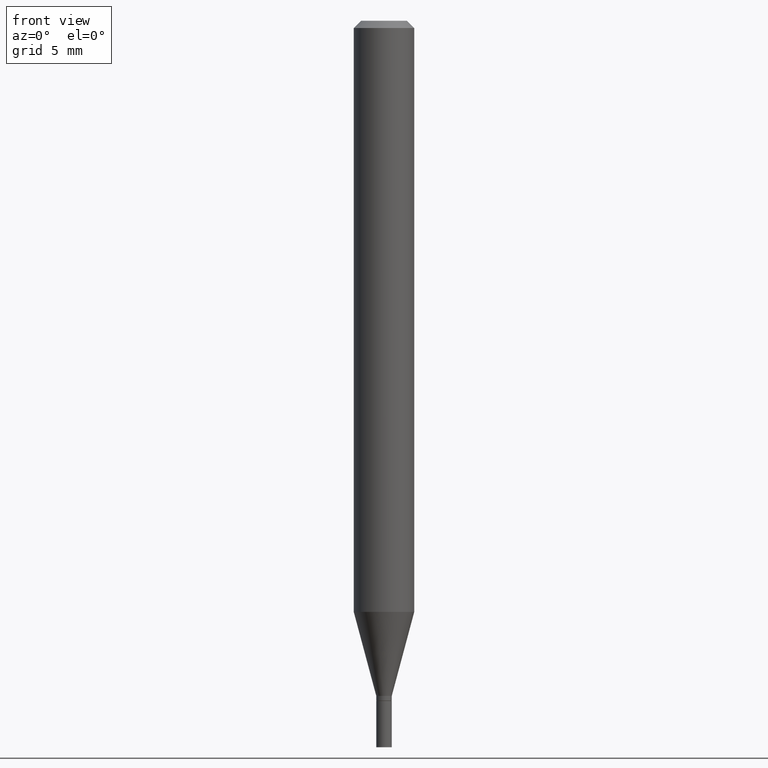
[diagram: clean part render]
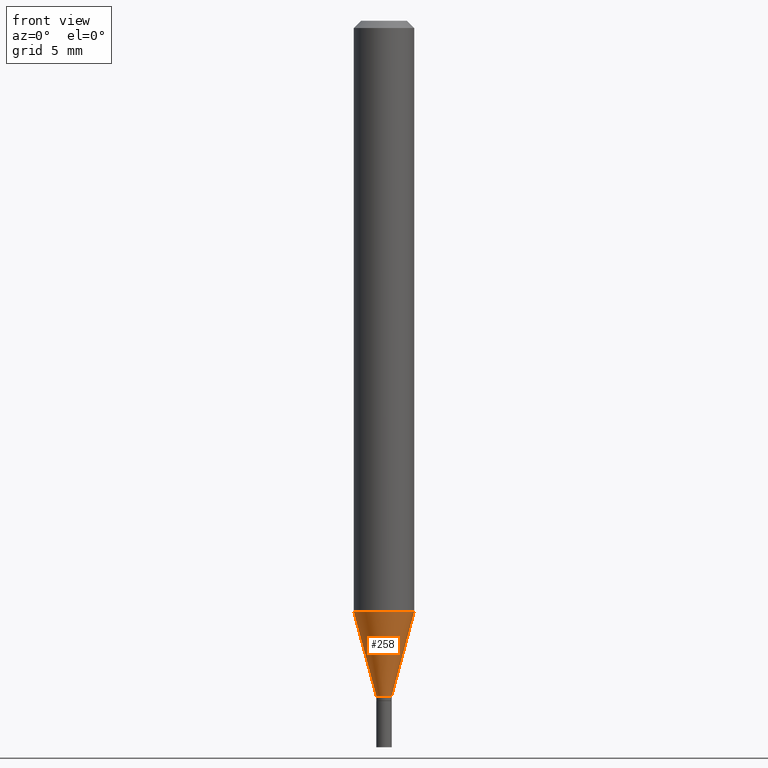
[diagram: same view with one face highlighted and labeled with its STEP entity id]
A machine part, front view. The second image highlights one B-rep face of the part: STEP entity #258.
In plain terms, the highlighted conical surface has half-angle 15 deg.
Its self-contained STEP definition (entity closure, byte-faithful):
#1 = DIRECTION ( 'NONE',  ( 1.000000000000000000, -6.982962677686244622E-15, 0.000000000000000000 ) ) ;
#5 = DIRECTION ( 'NONE',  ( 0.2588190451025213501, 1.565188264969621968E-15, 0.9659258262890682012 ) ) ;
#7 = ORIENTED_EDGE ( 'NONE', *, *, #84, .T. ) ;
#8 = CARTESIAN_POINT ( 'NONE',  ( 2.984595972587221379E-29, -4.261212048961128661E-15, -1.220459637448047641 ) ) ;
#10 = CONICAL_SURFACE ( 'NONE', #351, 0.01599999999999992401, 0.2617993877991500740 ) ;
#31 = CARTESIAN_POINT ( 'NONE',  ( 0.01599999999999992401, -4.978852389190325393E-15, -1.394000000000000128 ) ) ;
#33 = DIRECTION ( 'NONE',  ( -2.445468806185136597E-29, 3.491481338843145583E-15, 1.000000000000000000 ) ) ;
#40 = CARTESIAN_POINT ( 'NONE',  ( 3.408983515822080869E-29, -4.867124986347346010E-15, -1.394000000000000128 ) ) ;
#42 = VERTEX_POINT ( 'NONE', #52 ) ;
#52 = CARTESIAN_POINT ( 'NONE',  ( -0.01599999999999992401, -4.285280493868398751E-15, -1.394000000000000128 ) ) ;
#53 = AXIS2_PLACEMENT_3D ( 'NONE', #208, #360, #1 ) ;
#63 = CARTESIAN_POINT ( 'NONE',  ( -0.01599999999999992401, -4.753438148625730668E-15, -1.394000000000000128 ) ) ;
#68 = CIRCLE ( 'NONE', #209, 0.06250000000000000000 ) ;
#74 = EDGE_LOOP ( 'NONE', ( #240, #7, #414, #227 ) ) ;
#83 = VERTEX_POINT ( 'NONE', #332 ) ;
#84 = EDGE_CURVE ( 'NONE', #42, #373, #361, .T. ) ;
#97 = LINE ( 'NONE', #63, #150 ) ;
#102 = LINE ( 'NONE', #31, #322 ) ;
#115 = DIRECTION ( 'NONE',  ( 1.000000000000000000, -6.982962677686262766E-15, 0.000000000000000000 ) ) ;
#150 = VECTOR ( 'NONE', #330, 39.37007874015747433 ) ;
#155 = DIRECTION ( 'NONE',  ( -2.445468806185136597E-29, 3.491481338843145583E-15, 1.000000000000000000 ) ) ;
#178 = CARTESIAN_POINT ( 'NONE',  ( 0.01599999999999992401, -4.978852389190325393E-15, -1.394000000000000128 ) ) ;
#195 = DIRECTION ( 'NONE',  ( 1.000000000000000000, -6.982962677686244622E-15, 0.000000000000000000 ) ) ;
#198 = EDGE_CURVE ( 'NONE', #42, #83, #97, .T. ) ;
#208 = CARTESIAN_POINT ( 'NONE',  ( 3.408983515822080869E-29, -4.867124986347346010E-15, -1.394000000000000128 ) ) ;
#209 = AXIS2_PLACEMENT_3D ( 'NONE', #8, #155, #115 ) ;
#227 = ORIENTED_EDGE ( 'NONE', *, *, #347, .F. ) ;
#240 = ORIENTED_EDGE ( 'NONE', *, *, #198, .F. ) ;
#258 = ADVANCED_FACE ( 'NONE', ( #412 ), #10, .T. ) ;
#322 = VECTOR ( 'NONE', #5, 39.37007874015747433 ) ;
#330 = DIRECTION ( 'NONE',  ( -0.2588190451025213501, 5.211531920934551042E-15, 0.9659258262890682012 ) ) ;
#332 = CARTESIAN_POINT ( 'NONE',  ( -0.06250000000000000000, -3.817122839111066834E-15, -1.220459637448047641 ) ) ;
#347 = EDGE_CURVE ( 'NONE', #83, #349, #68, .T. ) ;
#349 = VERTEX_POINT ( 'NONE', #419 ) ;
#351 = AXIS2_PLACEMENT_3D ( 'NONE', #40, #33, #195 ) ;
#360 = DIRECTION ( 'NONE',  ( -2.445468806185136597E-29, 3.491481338843145583E-15, 1.000000000000000000 ) ) ;
#361 = CIRCLE ( 'NONE', #53, 0.01599999999999992401 ) ;
#373 = VERTEX_POINT ( 'NONE', #178 ) ;
#412 = FACE_OUTER_BOUND ( 'NONE', #74, .T. ) ;
#414 = ORIENTED_EDGE ( 'NONE', *, *, #439, .T. ) ;
#419 = CARTESIAN_POINT ( 'NONE',  ( 0.06250000000000000000, -4.697647216316520331E-15, -1.220459637448047641 ) ) ;
#439 = EDGE_CURVE ( 'NONE', #373, #349, #102, .T. ) ;